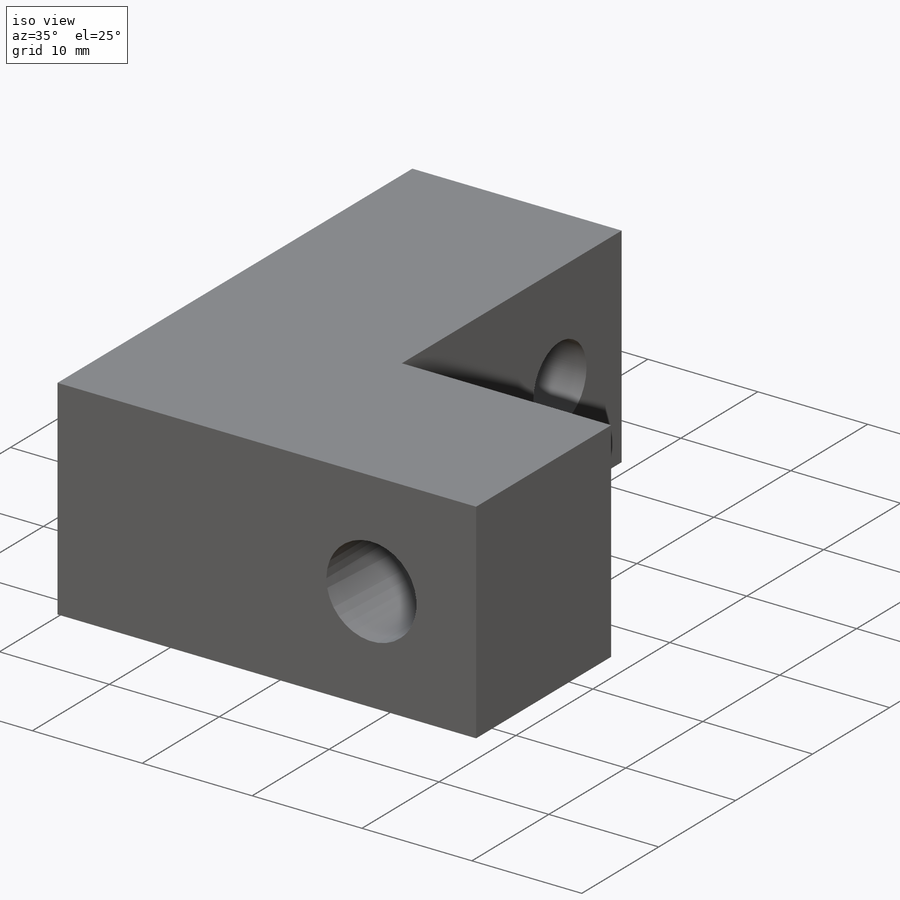
[diagram: iso view]
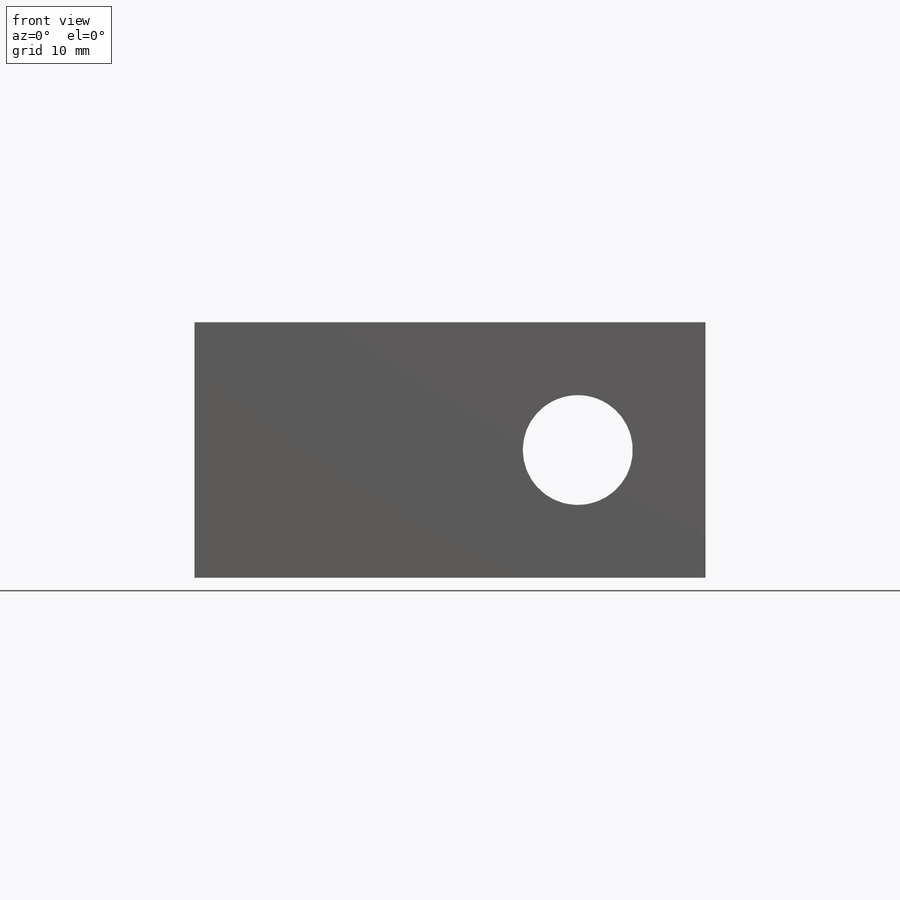
[diagram: front view]
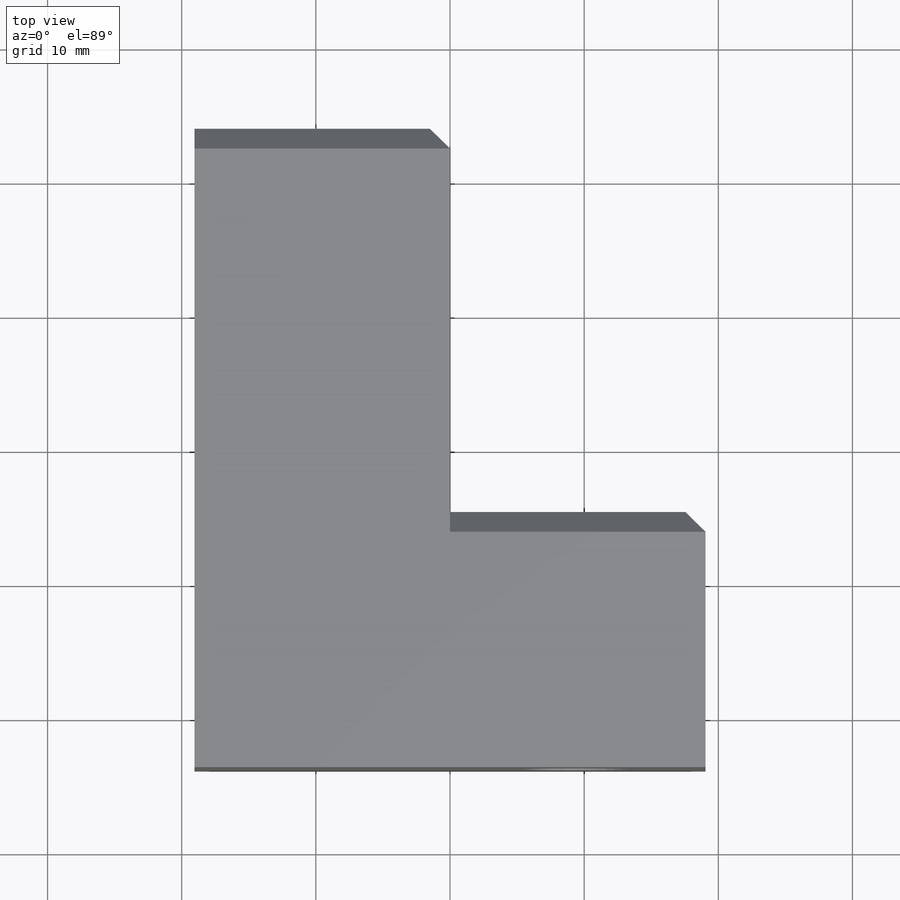
[diagram: top view]
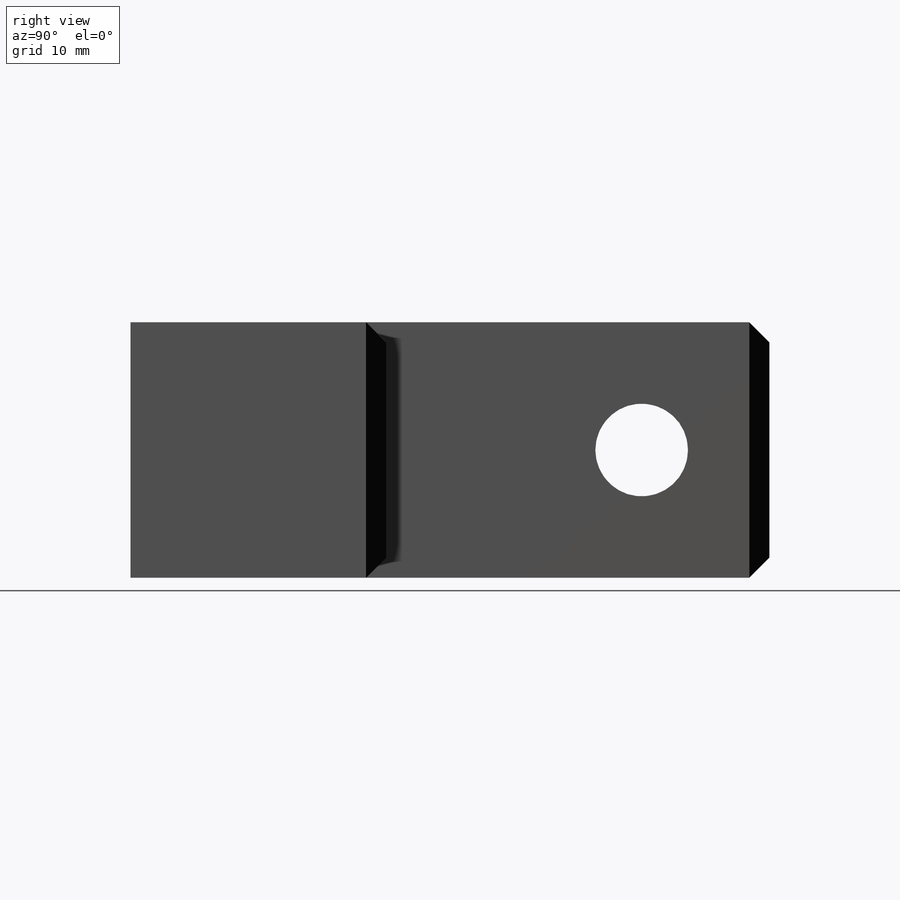
[diagram: right view]
SOLIDWORKS PART (.sldprt)
format: sldprt  version: not decoded by parser v0  size: 239,104 bytes
history: native  units: mm
features: sketch x6, hole x2, thread x2, material x1, extrude x1, cut_extrude x1, chamfer x1 (+16 scaffold rows collapsed)
feature tree (30):
  scaffold x16  (default folders/planes/origin — collapsed)
  material  "Material <not specified>"
  sketch  "Sketch1"  dims[D1=38.1mm D2=47.625mm]
  extrude  "Boss-Extrude1"  Depth=19.05mm
  sketch  "Sketch2"  dims[D1=19.05mm D2=19.05mm]
  cut_extrude  "Cut-Extrude1"  [1 undecoded]
  hole  "5/16-24 Tapped Hole1"  Diameter=6.9088mm Depth=19.06mm
  sketch  "Sketch4"  dims[D1=12.7mm D2=25.4mm]
  sketch  "Sketch3"  dims[hole-wizard template sketch: 40 standard entries collapsed; hole parameters kept: c13.Tap Drill Depth=19.06mm c13.Near C'Sink Dia.=9.2075mm c13.D4=~33.297463mm c13.Near C'Sink Angle=90.0deg c14.D5=~14.816244mm c14.Drill Angle=118.0deg]
  thread  "Hole Thread1"  Diameter=15.88mm  [1 undecoded]
  thread  "Hole Thread2"  Diameter=15.88mm  [1 undecoded]
  hole  "5/16 Clearance Hole1"  Diameter=8.2042mm Depth=19.05mm
  sketch  "Sketch6"  dims[D1=9.525mm D2=25.4mm]
  sketch  "Sketch5"  dims[hole-wizard template sketch: 54 standard entries collapsed; hole parameters kept: c17.Thru Hole Dia.=8.2042mm c17.Thru Hole Depth=19.05mm c17.Near C'Sink Dia.=9.4742mm c17.D4=~3.666174mm c17.Near C'Sink Angle=90.0deg]
  chamfer  "Chamfer1"  Distance=1.5mm Angle=45deg
decode coverage: 12 of 13 modeling features carry decoded parameters
note: ~ marks probable driven/reference dimensions
note: 3 parameter values undecoded
note: suppression state not decoded; provenance and decode notes live in map.json
